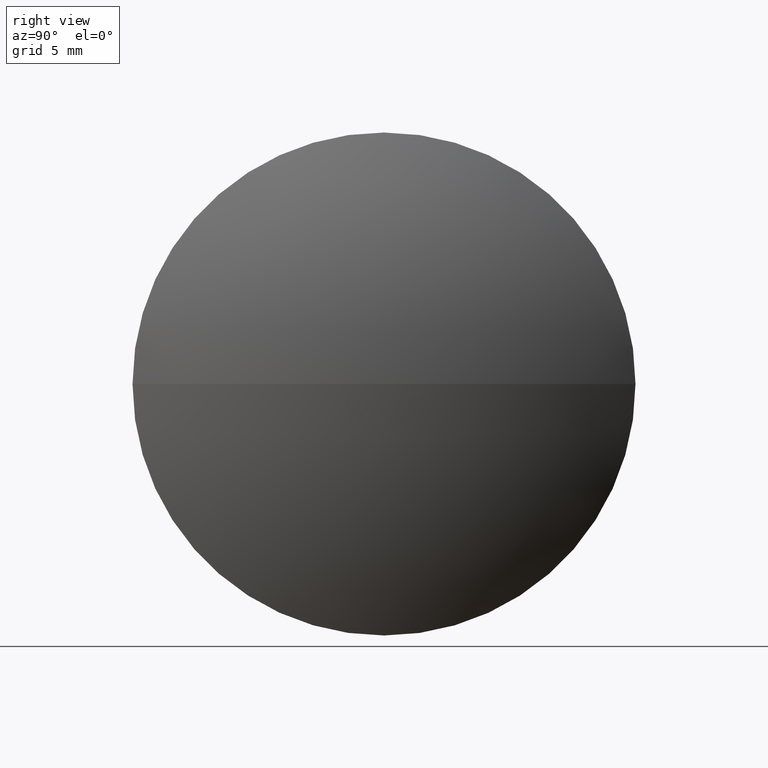
[diagram: clean part render]
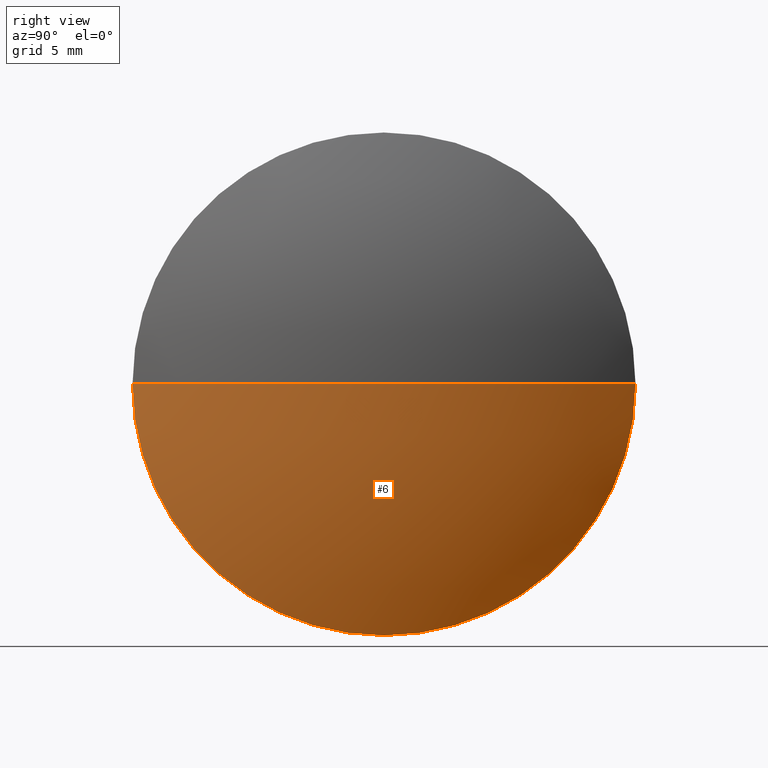
[diagram: same view with one face highlighted and labeled with its STEP entity id]
A machine part, right view. The second image highlights one B-rep face of the part: STEP entity #6.
In plain terms, the highlighted spherical surface has radius 26.0866 mm.
Its self-contained STEP definition (entity closure, byte-faithful):
#1 = ORIENTED_EDGE ( 'NONE', *, *, #237, .F. ) ;
#5 = AXIS2_PLACEMENT_3D ( 'NONE', #185, #274, #8 ) ;
#6 = ADVANCED_FACE ( 'NONE', ( #141 ), #190, .T. ) ;
#8 = DIRECTION ( 'NONE',  ( 0.0000000000000000000, -1.000000000000000000, 0.0000000000000000000 ) ) ;
#19 = DIRECTION ( 'NONE',  ( -1.000000000000000000, 0.0000000000000000000, 0.0000000000000000000 ) ) ;
#21 = EDGE_CURVE ( 'NONE', #179, #276, #333, .T. ) ;
#36 = CIRCLE ( 'NONE', #137, 12.69999999999999600 ) ;
#48 = AXIS2_PLACEMENT_3D ( 'NONE', #172, #310, #19 ) ;
#111 = DIRECTION ( 'NONE',  ( -1.000000000000000000, -0.0000000000000000000, -0.0000000000000000000 ) ) ;
#124 = VERTEX_POINT ( 'NONE', #213 ) ;
#127 = CIRCLE ( 'NONE', #171, 26.08659643053486100 ) ;
#137 = AXIS2_PLACEMENT_3D ( 'NONE', #254, #142, #334 ) ;
#141 = FACE_OUTER_BOUND ( 'NONE', #151, .T. ) ;
#142 = DIRECTION ( 'NONE',  ( -1.000000000000000000, -0.0000000000000000000, -0.0000000000000000000 ) ) ;
#151 = EDGE_LOOP ( 'NONE', ( #266, #226, #253, #1 ) ) ;
#161 = EDGE_CURVE ( 'NONE', #124, #280, #127, .T. ) ;
#170 = CARTESIAN_POINT ( 'NONE',  ( 87.45786520323396500, 61.31611302318479100, 1.555301434917137400E-015 ) ) ;
#171 = AXIS2_PLACEMENT_3D ( 'NONE', #272, #196, #200 ) ;
#172 = CARTESIAN_POINT ( 'NONE',  ( 64.67145448698481400, 48.61611302318480200, 0.0000000000000000000 ) ) ;
#179 = VERTEX_POINT ( 'NONE', #286 ) ;
#185 = CARTESIAN_POINT ( 'NONE',  ( 64.67145448698481400, 48.61611302318480200, 0.0000000000000000000 ) ) ;
#190 = SPHERICAL_SURFACE ( 'NONE', #5, 26.08659643053486100 ) ;
#194 = CIRCLE ( 'NONE', #48, 26.08659643053486100 ) ;
#196 = DIRECTION ( 'NONE',  ( 0.0000000000000000000, -1.224646799147353200E-016, 1.000000000000000000 ) ) ;
#200 = DIRECTION ( 'NONE',  ( 0.0000000000000000000, -1.000000000000000000, -1.224646799147353200E-016 ) ) ;
#213 = CARTESIAN_POINT ( 'NONE',  ( 90.75805091751968200, 48.61611302318480200, 0.0000000000000000000 ) ) ;
#226 = ORIENTED_EDGE ( 'NONE', *, *, #252, .T. ) ;
#237 = EDGE_CURVE ( 'NONE', #280, #179, #36, .T. ) ;
#252 = EDGE_CURVE ( 'NONE', #124, #276, #194, .T. ) ;
#253 = ORIENTED_EDGE ( 'NONE', *, *, #21, .F. ) ;
#254 = CARTESIAN_POINT ( 'NONE',  ( 87.45786520323396500, 48.61611302318478100, 0.0000000000000000000 ) ) ;
#257 = CARTESIAN_POINT ( 'NONE',  ( 87.45786520323396500, 35.91611302318479200, 0.0000000000000000000 ) ) ;
#266 = ORIENTED_EDGE ( 'NONE', *, *, #161, .F. ) ;
#272 = CARTESIAN_POINT ( 'NONE',  ( 64.67145448698481400, 48.61611302318480200, 0.0000000000000000000 ) ) ;
#274 = DIRECTION ( 'NONE',  ( 0.0000000000000000000, 0.0000000000000000000, 1.000000000000000000 ) ) ;
#276 = VERTEX_POINT ( 'NONE', #257 ) ;
#280 = VERTEX_POINT ( 'NONE', #170 ) ;
#286 = CARTESIAN_POINT ( 'NONE',  ( 87.45786520323396500, 48.61611302318478100, -12.69999999999999600 ) ) ;
#300 = DIRECTION ( 'NONE',  ( 0.0000000000000000000, 0.0000000000000000000, 1.000000000000000000 ) ) ;
#310 = DIRECTION ( 'NONE',  ( 0.0000000000000000000, 0.0000000000000000000, -1.000000000000000000 ) ) ;
#322 = CARTESIAN_POINT ( 'NONE',  ( 87.45786520323396500, 48.61611302318478100, 0.0000000000000000000 ) ) ;
#330 = AXIS2_PLACEMENT_3D ( 'NONE', #322, #111, #300 ) ;
#333 = CIRCLE ( 'NONE', #330, 12.69999999999999600 ) ;
#334 = DIRECTION ( 'NONE',  ( 0.0000000000000000000, 0.0000000000000000000, 1.000000000000000000 ) ) ;